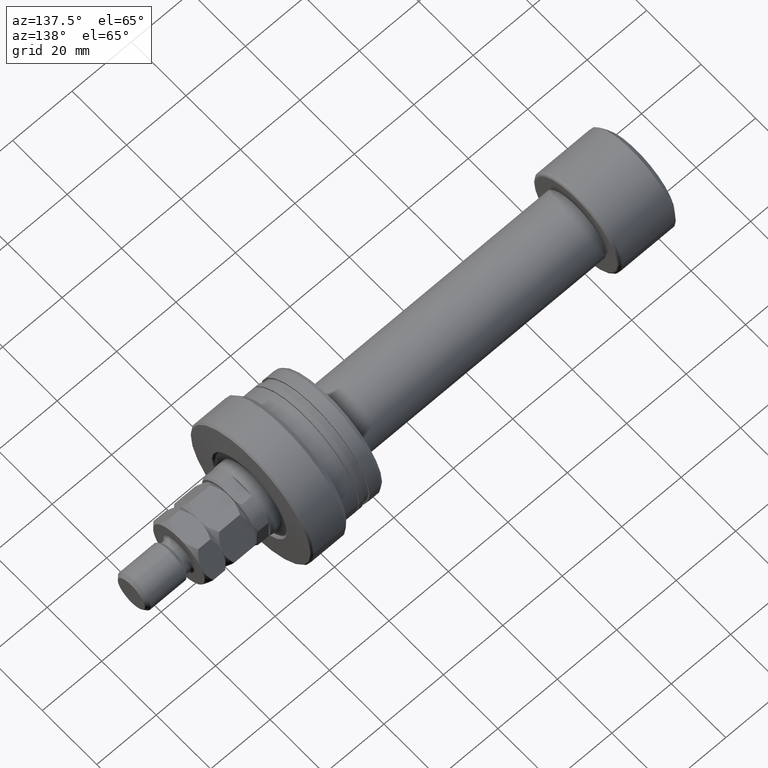
[diagram: clean part render]
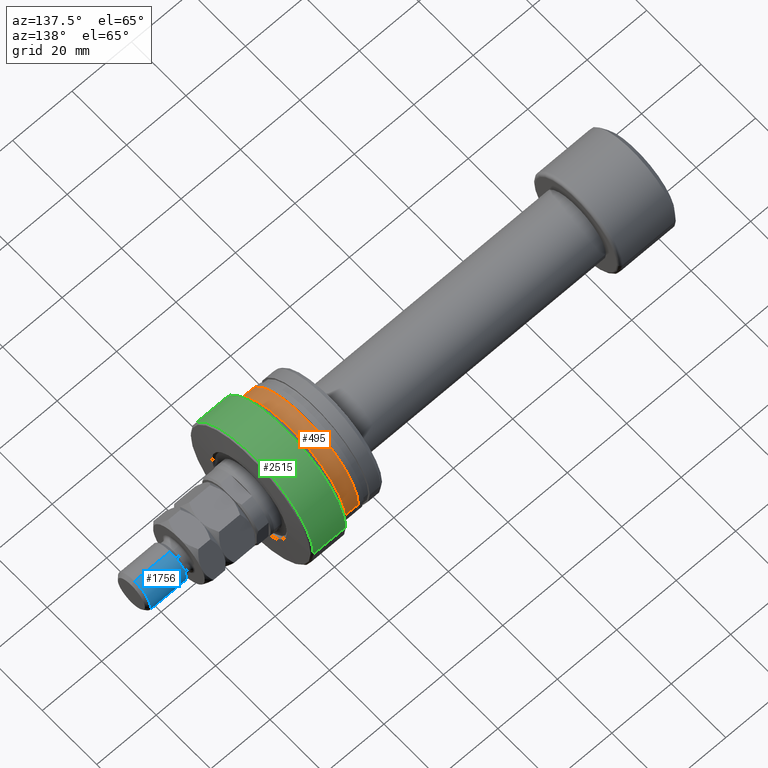
[diagram: same view with three faces highlighted in distinct colors, each labeled with its STEP entity id]
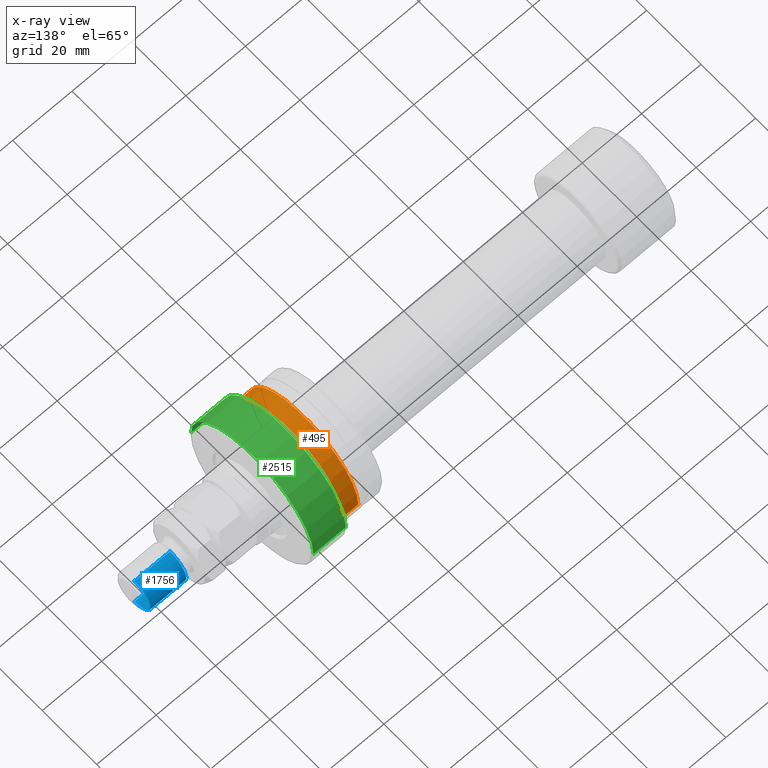
[diagram: x-ray of the same camera — body ghosted, the three highlighted faces saturated]
A machine part, auxiliary view with three faces highlighted in distinct colors.
The next image is the same camera in x-ray (body ghosted, the three faces saturated) — at least one of them is partly hidden behind the body in this view.
Their STEP definitions:

[orange] entity #495 — the highlighted cylindrical surface (partial cylindrical patch) has radius 20 mm, axis along (-1, 0, 0).
#1 = CARTESIAN_POINT ( 'NONE',  ( -30.28002276692732408, 0.000000000000000000, 0.000000000000000000 ) ) ;
#11 = CARTESIAN_POINT ( 'NONE',  ( -13.99999999999997158, -2.171569355529967032E-14, 0.000000000000000000 ) ) ;
#141 = DIRECTION ( 'NONE',  ( -1.387778780781446464E-15, -1.000000000000000000, 0.000000000000000000 ) ) ;
#159 = CARTESIAN_POINT ( 'NONE',  ( -30.28002276692729566, 19.99999999999998579, 2.449293598294704935E-15 ) ) ;
#175 = CARTESIAN_POINT ( 'NONE',  ( -30.28002276692735251, -19.99999999999998579, 0.000000000000000000 ) ) ;
#179 = ORIENTED_EDGE ( 'NONE', *, *, #3399, .T. ) ;
#229 = DIRECTION ( 'NONE',  ( -1.301042606982606504E-15, -1.000000000000000000, 0.000000000000000000 ) ) ;
#245 = VERTEX_POINT ( 'NONE', #2246 ) ;
#344 = CARTESIAN_POINT ( 'NONE',  ( -19.00000000000000355, -20.00000000000000355, 0.000000000000000000 ) ) ;
#400 = EDGE_LOOP ( 'NONE', ( #2037, #179, #1845, #4007 ) ) ;
#442 = CIRCLE ( 'NONE', #3113, 19.99999999999998934 ) ;
#495 = ADVANCED_FACE ( 'NONE', ( #1265 ), #3457, .T. ) ;
#575 = EDGE_CURVE ( 'NONE', #1909, #2134, #442, .T. ) ;
#774 = VECTOR ( 'NONE', #2043, 1000.000000000000000 ) ;
#780 = VERTEX_POINT ( 'NONE', #2679 ) ;
#795 = LINE ( 'NONE', #175, #774 ) ;
#819 = EDGE_CURVE ( 'NONE', #245, #1909, #795, .T. ) ;
#1265 = FACE_OUTER_BOUND ( 'NONE', #400, .T. ) ;
#1302 = EDGE_CURVE ( 'NONE', #245, #780, #2465, .T. ) ;
#1500 = AXIS2_PLACEMENT_3D ( 'NONE', #11, #3343, #229 ) ;
#1641 = DIRECTION ( 'NONE',  ( -1.000000000000000000, 1.333885945136072597E-15, -0.000000000000000000 ) ) ;
#1845 = ORIENTED_EDGE ( 'NONE', *, *, #575, .F. ) ;
#1909 = VERTEX_POINT ( 'NONE', #344 ) ;
#2037 = ORIENTED_EDGE ( 'NONE', *, *, #1302, .T. ) ;
#2043 = DIRECTION ( 'NONE',  ( -1.000000000000000000, 1.333885945136072597E-15, -0.000000000000000000 ) ) ;
#2045 = DIRECTION ( 'NONE',  ( -1.000000000000000000, 1.333885945136072597E-15, -0.000000000000000000 ) ) ;
#2074 = AXIS2_PLACEMENT_3D ( 'NONE', #1, #3396, #3137 ) ;
#2134 = VERTEX_POINT ( 'NONE', #3135 ) ;
#2246 = CARTESIAN_POINT ( 'NONE',  ( -13.99999999999999645, -20.00000000000000355, 0.000000000000000000 ) ) ;
#2465 = CIRCLE ( 'NONE', #1500, 19.99999999999998224 ) ;
#2548 = VECTOR ( 'NONE', #2045, 1000.000000000000000 ) ;
#2609 = LINE ( 'NONE', #159, #2548 ) ;
#2679 = CARTESIAN_POINT ( 'NONE',  ( -13.99999999999994493, 19.99999999999996092, 2.449293598294704935E-15 ) ) ;
#3113 = AXIS2_PLACEMENT_3D ( 'NONE', #3236, #1641, #141 ) ;
#3135 = CARTESIAN_POINT ( 'NONE',  ( -18.99999999999994671, 19.99999999999997868, 2.449293598294706119E-15 ) ) ;
#3137 = DIRECTION ( 'NONE',  ( -1.387778780781446662E-15, -1.000000000000000000, 0.000000000000000000 ) ) ;
#3236 = CARTESIAN_POINT ( 'NONE',  ( -18.99999999999997513, -1.504626382961930063E-14, 0.000000000000000000 ) ) ;
#3343 = DIRECTION ( 'NONE',  ( -1.000000000000000000, 1.333885945136072597E-15, -0.000000000000000000 ) ) ;
#3396 = DIRECTION ( 'NONE',  ( -1.000000000000000000, 1.333885945136072597E-15, -0.000000000000000000 ) ) ;
#3399 = EDGE_CURVE ( 'NONE', #780, #2134, #2609, .T. ) ;
#3457 = CYLINDRICAL_SURFACE ( 'NONE', #2074, 19.99999999999998579 ) ;
#4007 = ORIENTED_EDGE ( 'NONE', *, *, #819, .F. ) ;

[blue] entity #1756 — the highlighted cylindrical surface (edge-blend (fillet) strip) has radius 6 mm, axis along (-1, -0, 0).
#12 = AXIS2_PLACEMENT_3D ( 'NONE', #736, #1985, #2910 ) ;
#18 = ORIENTED_EDGE ( 'NONE', *, *, #3000, .T. ) ;
#30 = ORIENTED_EDGE ( 'NONE', *, *, #2838, .F. ) ;
#163 = CARTESIAN_POINT ( 'NONE',  ( 6.000000000000000888, 7.347880794884120722E-16, 33.00000000000000000 ) ) ;
#287 = EDGE_CURVE ( 'NONE', #3400, #298, #1458, .T. ) ;
#293 = LINE ( 'NONE', #2775, #790 ) ;
#298 = VERTEX_POINT ( 'NONE', #1126 ) ;
#435 = ORIENTED_EDGE ( 'NONE', *, *, #287, .T. ) ;
#576 = DIRECTION ( 'NONE',  ( -1.000000000000000000, 0.000000000000000000, 0.000000000000000000 ) ) ;
#736 = CARTESIAN_POINT ( 'NONE',  ( 0.000000000000000000, 0.000000000000000000, 32.00000000000000000 ) ) ;
#790 = VECTOR ( 'NONE', #3406, 1000.000000000000000 ) ;
#809 = CARTESIAN_POINT ( 'NONE',  ( -6.000000000000000888, 0.000000000000000000, 32.00000000000000000 ) ) ;
#992 = CIRCLE ( 'NONE', #12, 6.000000000000000888 ) ;
#1126 = CARTESIAN_POINT ( 'NONE',  ( 6.000000000000000888, 7.347880794884120722E-16, 20.00000000000000711 ) ) ;
#1165 = DIRECTION ( 'NONE',  ( -0.000000000000000000, -0.000000000000000000, -1.000000000000000000 ) ) ;
#1226 = VERTEX_POINT ( 'NONE', #809 ) ;
#1417 = DIRECTION ( 'NONE',  ( -0.000000000000000000, -0.000000000000000000, -1.000000000000000000 ) ) ;
#1458 = LINE ( 'NONE', #163, #3177 ) ;
#1756 = ADVANCED_FACE ( 'NONE', ( #2791 ), #2407, .T. ) ;
#1985 = DIRECTION ( 'NONE',  ( 0.000000000000000000, 0.000000000000000000, -1.000000000000000000 ) ) ;
#2064 = ORIENTED_EDGE ( 'NONE', *, *, #3512, .T. ) ;
#2085 = DIRECTION ( 'NONE',  ( -0.000000000000000000, -0.000000000000000000, 1.000000000000000000 ) ) ;
#2307 = CARTESIAN_POINT ( 'NONE',  ( 6.000000000000000888, 7.347880794884120722E-16, 32.00000000000000000 ) ) ;
#2407 = CYLINDRICAL_SURFACE ( 'NONE', #3702, 6.000000000000000888 ) ;
#2714 = CARTESIAN_POINT ( 'NONE',  ( -6.000000000000000888, 0.000000000000000000, 20.00000000000000711 ) ) ;
#2775 = CARTESIAN_POINT ( 'NONE',  ( -6.000000000000000888, 0.000000000000000000, 33.00000000000000000 ) ) ;
#2791 = FACE_OUTER_BOUND ( 'NONE', #3792, .T. ) ;
#2838 = EDGE_CURVE ( 'NONE', #1226, #3978, #293, .T. ) ;
#2910 = DIRECTION ( 'NONE',  ( 1.000000000000000000, 0.000000000000000000, 0.000000000000000000 ) ) ;
#3000 = EDGE_CURVE ( 'NONE', #298, #3978, #3772, .T. ) ;
#3005 = AXIS2_PLACEMENT_3D ( 'NONE', #3622, #2085, #3319 ) ;
#3024 = CARTESIAN_POINT ( 'NONE',  ( 0.000000000000000000, 0.000000000000000000, 33.00000000000000000 ) ) ;
#3177 = VECTOR ( 'NONE', #1417, 1000.000000000000000 ) ;
#3319 = DIRECTION ( 'NONE',  ( 1.000000000000000000, 0.000000000000000000, 0.000000000000000000 ) ) ;
#3400 = VERTEX_POINT ( 'NONE', #2307 ) ;
#3406 = DIRECTION ( 'NONE',  ( -0.000000000000000000, -0.000000000000000000, -1.000000000000000000 ) ) ;
#3512 = EDGE_CURVE ( 'NONE', #1226, #3400, #992, .T. ) ;
#3622 = CARTESIAN_POINT ( 'NONE',  ( 0.000000000000000000, 0.000000000000000000, 20.00000000000000711 ) ) ;
#3702 = AXIS2_PLACEMENT_3D ( 'NONE', #3024, #1165, #576 ) ;
#3772 = CIRCLE ( 'NONE', #3005, 6.000000000000000888 ) ;
#3792 = EDGE_LOOP ( 'NONE', ( #2064, #435, #18, #30 ) ) ;
#3978 = VERTEX_POINT ( 'NONE', #2714 ) ;

[green] entity #2515 — the highlighted cylindrical surface (partial cylindrical patch) has radius 22.5 mm, axis along (-1, 0, 0).
#84 = CARTESIAN_POINT ( 'NONE',  ( -30.28002276692729211, 22.49999999999996803, 2.755455298081540833E-15 ) ) ;
#85 = DIRECTION ( 'NONE',  ( -1.000000000000000000, 1.333885945136072597E-15, -0.000000000000000000 ) ) ;
#105 = DIRECTION ( 'NONE',  ( -1.329954664915554407E-15, -1.000000000000000000, 0.000000000000000000 ) ) ;
#114 = CYLINDRICAL_SURFACE ( 'NONE', #3198, 22.49999999999996803 ) ;
#133 = ORIENTED_EDGE ( 'NONE', *, *, #1908, .T. ) ;
#137 = FACE_OUTER_BOUND ( 'NONE', #2453, .T. ) ;
#146 = LINE ( 'NONE', #3889, #2402 ) ;
#167 = ORIENTED_EDGE ( 'NONE', *, *, #226, .T. ) ;
#226 = EDGE_CURVE ( 'NONE', #3897, #937, #3261, .T. ) ;
#776 = DIRECTION ( 'NONE',  ( -1.000000000000000000, 1.333885945136072597E-15, -0.000000000000000000 ) ) ;
#937 = VERTEX_POINT ( 'NONE', #3132 ) ;
#1005 = DIRECTION ( 'NONE',  ( -1.000000000000000000, 1.333885945136072597E-15, -0.000000000000000000 ) ) ;
#1336 = CARTESIAN_POINT ( 'NONE',  ( -1.600000000000666889, -3.825587927498604708E-14, 0.000000000000000000 ) ) ;
#1346 = DIRECTION ( 'NONE',  ( -1.000000000000000000, 1.333885945136072597E-15, -0.000000000000000000 ) ) ;
#1622 = AXIS2_PLACEMENT_3D ( 'NONE', #2358, #2320, #3291 ) ;
#1703 = VECTOR ( 'NONE', #1005, 1000.000000000000000 ) ;
#1908 = EDGE_CURVE ( 'NONE', #2399, #3897, #3443, .T. ) ;
#1984 = EDGE_CURVE ( 'NONE', #2399, #3095, #146, .T. ) ;
#2320 = DIRECTION ( 'NONE',  ( -1.000000000000000000, 1.333885945136072597E-15, -0.000000000000000000 ) ) ;
#2358 = CARTESIAN_POINT ( 'NONE',  ( -12.50000000000065370, -2.371652247300287340E-14, 0.000000000000000000 ) ) ;
#2399 = VERTEX_POINT ( 'NONE', #3752 ) ;
#2402 = VECTOR ( 'NONE', #776, 1000.000000000000000 ) ;
#2443 = CARTESIAN_POINT ( 'NONE',  ( -12.50000000000068212, -22.49999999999999645, 2.755455298081541622E-15 ) ) ;
#2448 = ORIENTED_EDGE ( 'NONE', *, *, #3837, .F. ) ;
#2453 = EDGE_LOOP ( 'NONE', ( #133, #167, #2448, #3175 ) ) ;
#2515 = ADVANCED_FACE ( 'NONE', ( #137 ), #114, .T. ) ;
#2586 = CIRCLE ( 'NONE', #1622, 22.49999999999997513 ) ;
#2639 = DIRECTION ( 'NONE',  ( -1.387778780781447648E-15, -1.000000000000000000, 0.000000000000000000 ) ) ;
#2658 = CARTESIAN_POINT ( 'NONE',  ( -30.28002276692732408, 0.000000000000000000, 0.000000000000000000 ) ) ;
#2906 = CARTESIAN_POINT ( 'NONE',  ( -1.600000000000636913, 22.49999999999992184, 2.755455298081540439E-15 ) ) ;
#3057 = AXIS2_PLACEMENT_3D ( 'NONE', #1336, #85, #105 ) ;
#3095 = VERTEX_POINT ( 'NONE', #2443 ) ;
#3132 = CARTESIAN_POINT ( 'NONE',  ( -12.50000000000062350, 22.49999999999995026, 0.000000000000000000 ) ) ;
#3175 = ORIENTED_EDGE ( 'NONE', *, *, #1984, .F. ) ;
#3198 = AXIS2_PLACEMENT_3D ( 'NONE', #2658, #1346, #2639 ) ;
#3261 = LINE ( 'NONE', #84, #1703 ) ;
#3291 = DIRECTION ( 'NONE',  ( -1.310679959626922274E-15, -1.000000000000000000, 0.000000000000000000 ) ) ;
#3443 = CIRCLE ( 'NONE', #3057, 22.49999999999996092 ) ;
#3752 = CARTESIAN_POINT ( 'NONE',  ( -1.600000000000696865, -22.50000000000000000, 0.000000000000000000 ) ) ;
#3837 = EDGE_CURVE ( 'NONE', #3095, #937, #2586, .T. ) ;
#3889 = CARTESIAN_POINT ( 'NONE',  ( -30.28002276692735606, -22.49999999999996803, 0.000000000000000000 ) ) ;
#3897 = VERTEX_POINT ( 'NONE', #2906 ) ;